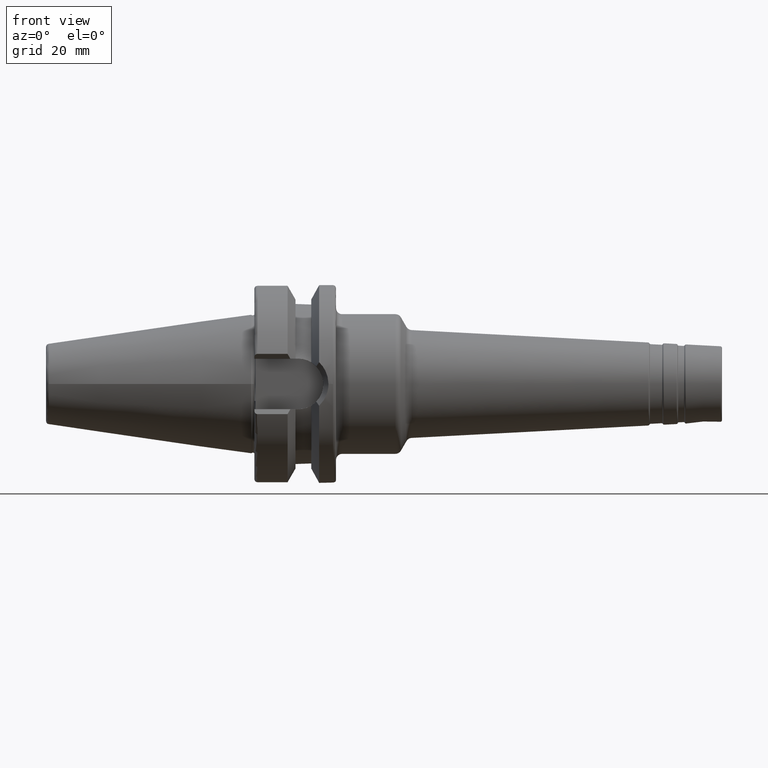
[diagram: clean part render]
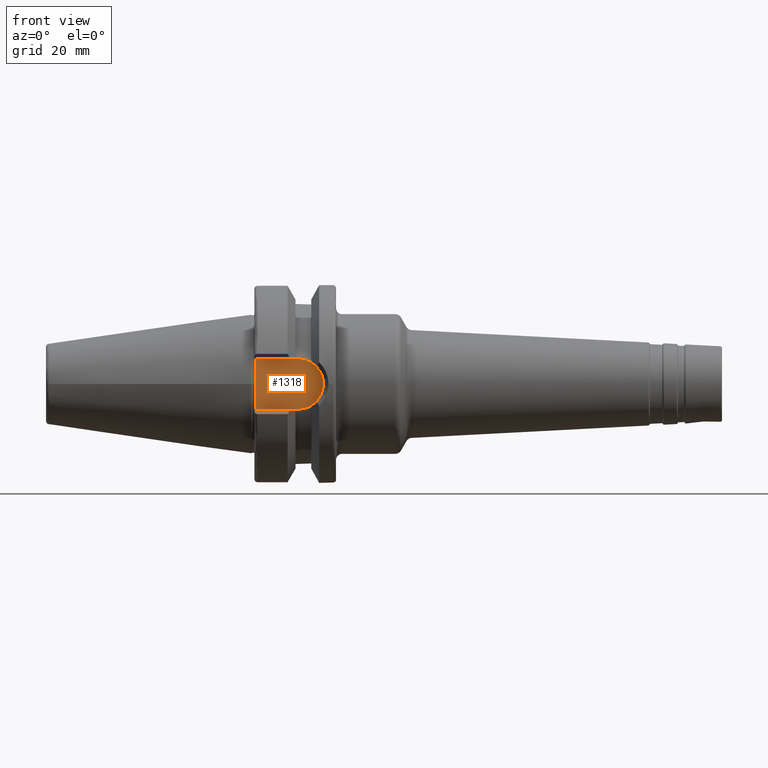
[diagram: same view with one face highlighted and labeled with its STEP entity id]
A machine part, front view. The second image highlights one B-rep face of the part: STEP entity #1318.
In plain terms, the highlighted planar face has unit normal (0, 1, 0).
Its self-contained STEP definition (entity closure, byte-faithful):
#85=PLANE('',#1487);
#140=LINE('',#2458,#211);
#144=LINE('',#2470,#215);
#145=LINE('',#2472,#216);
#146=LINE('',#2474,#217);
#211=VECTOR('',#1824,10.);
#215=VECTOR('',#1830,10.);
#216=VECTOR('',#1831,10.);
#217=VECTOR('',#1832,10.);
#314=FACE_OUTER_BOUND('',#401,.T.);
#401=EDGE_LOOP('',(#1085,#1086,#1087,#1088,#1089));
#498=CIRCLE('',#1488,8.05);
#612=VERTEX_POINT('',#2455);
#613=VERTEX_POINT('',#2457);
#617=VERTEX_POINT('',#2469);
#618=VERTEX_POINT('',#2471);
#619=VERTEX_POINT('',#2473);
#781=EDGE_CURVE('',#612,#613,#140,.T.);
#786=EDGE_CURVE('',#617,#612,#144,.T.);
#787=EDGE_CURVE('',#618,#617,#145,.T.);
#788=EDGE_CURVE('',#619,#618,#146,.T.);
#789=EDGE_CURVE('',#613,#619,#498,.T.);
#1085=ORIENTED_EDGE('',*,*,#786,.F.);
#1086=ORIENTED_EDGE('',*,*,#787,.F.);
#1087=ORIENTED_EDGE('',*,*,#788,.F.);
#1088=ORIENTED_EDGE('',*,*,#789,.F.);
#1089=ORIENTED_EDGE('',*,*,#781,.F.);
#1318=ADVANCED_FACE('',(#314),#85,.F.);
#1487=AXIS2_PLACEMENT_3D('',#2468,#1828,#1829);
#1488=AXIS2_PLACEMENT_3D('',#2475,#1833,#1834);
#1824=DIRECTION('',(1.,0.,7.95858799014451E-17));
#1828=DIRECTION('center_axis',(0.,1.,0.));
#1829=DIRECTION('ref_axis',(0.,0.,1.));
#1830=DIRECTION('',(0.,0.,1.));
#1831=DIRECTION('',(0.,0.,1.));
#1832=DIRECTION('',(-1.,0.,7.9585879901445E-17));
#1833=DIRECTION('center_axis',(0.,1.,0.));
#1834=DIRECTION('ref_axis',(0.,0.,1.));
#2455=CARTESIAN_POINT('',(1.4,-22.6,8.05));
#2457=CARTESIAN_POINT('',(14.95,-22.6,8.05));
#2458=CARTESIAN_POINT('',(1.00000000000002,-22.6,8.05));
#2468=CARTESIAN_POINT('Origin',(12.,-22.6,5.55111512312578E-16));
#2469=CARTESIAN_POINT('',(1.4,-22.6,0.));
#2470=CARTESIAN_POINT('',(1.4,-22.6,2.77555756156289E-16));
#2471=CARTESIAN_POINT('',(1.4,-22.6,-8.05));
#2472=CARTESIAN_POINT('',(1.4,-22.6,2.77555756156289E-16));
#2473=CARTESIAN_POINT('',(14.95,-22.6,-8.05));
#2474=CARTESIAN_POINT('',(14.95,-22.6,-8.05));
#2475=CARTESIAN_POINT('Origin',(14.95,-22.6,0.));